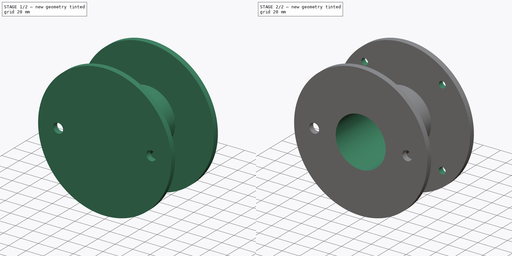
[diagram: build sequence overview — one tinted view per stage of 2, left to right]
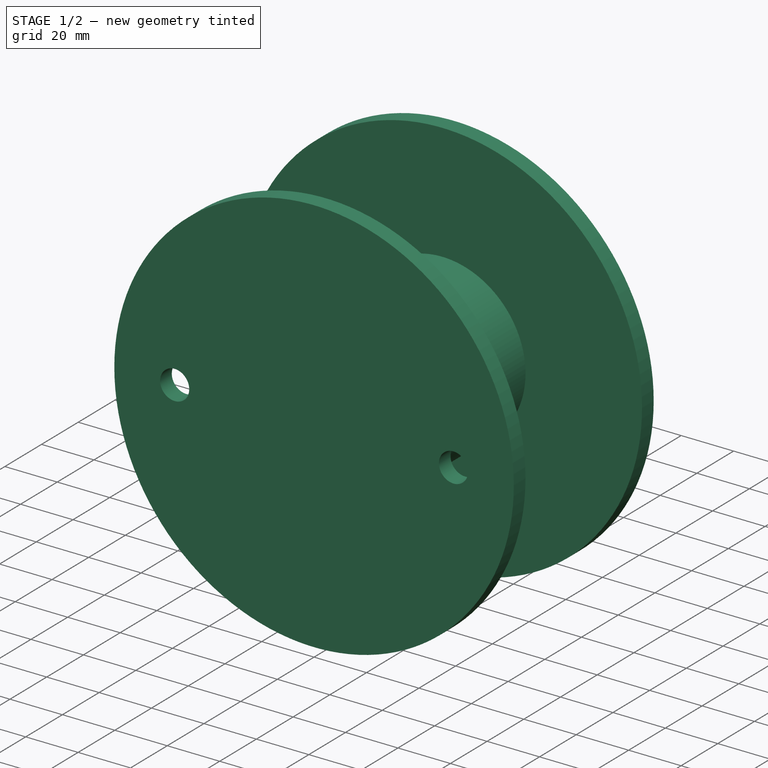
[diagram: stage 1 of 2 — iso view after this stage's code; geometry added in this stage tinted green]
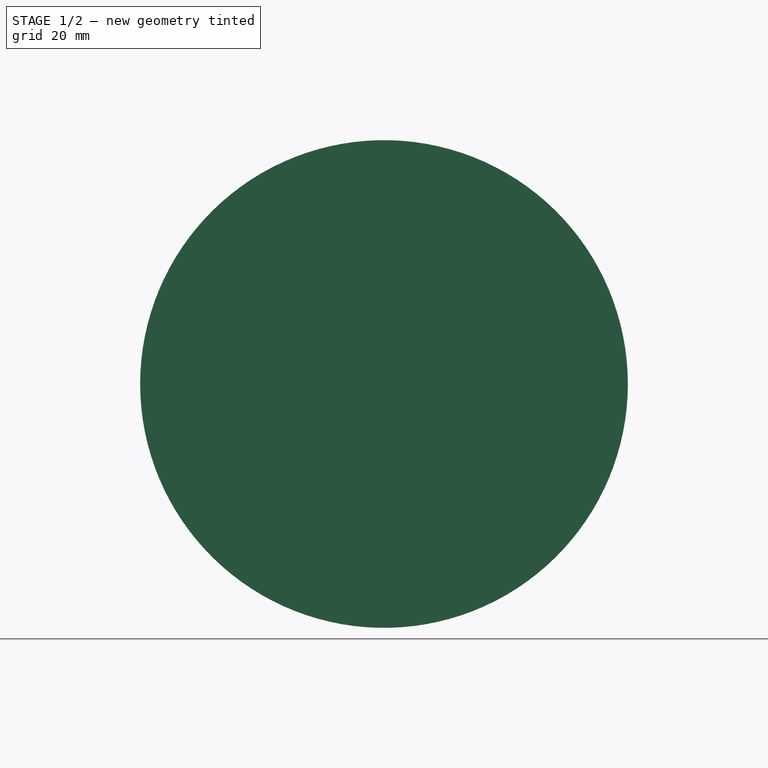
[diagram: stage 1 of 2 — front view after this stage's code; geometry added in this stage tinted green]
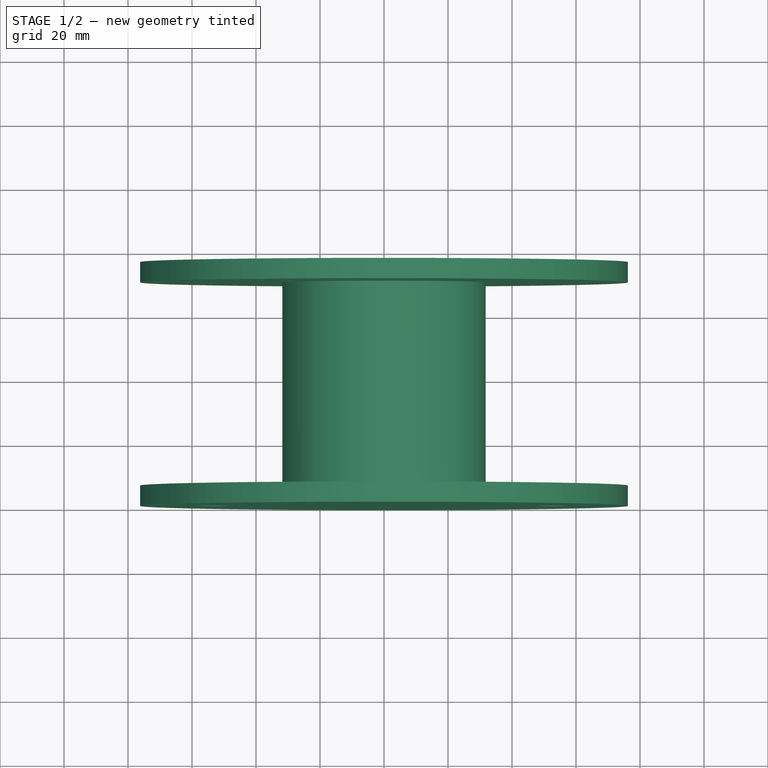
[diagram: stage 1 of 2 — top view after this stage's code; geometry added in this stage tinted green]
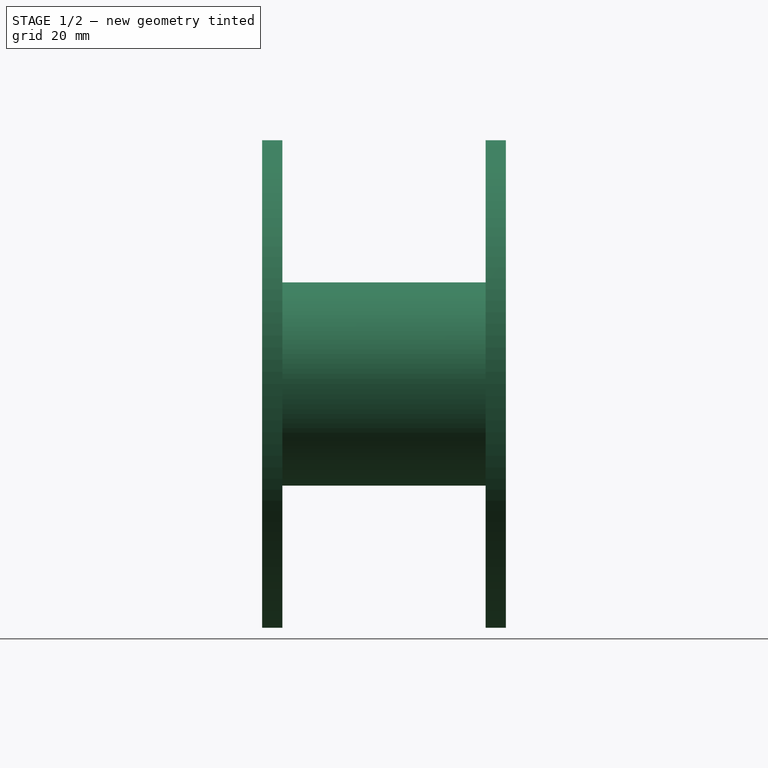
[diagram: stage 1 of 2 — right view after this stage's code; geometry added in this stage tinted green]
FCSTD DOCUMENT  (FreeCAD 0.16R6712 (Git))
Label: G22_Hydraulic_Pump_coupler_sleeve
License: All rights reserved
LicenseURL: http://en.wikipedia.org/wiki/All_rights_reserved
objects: Sketcher::SketchObject×4, PartDesign::Pocket×3, PartDesign::Revolution×1
note: 12 computed .brp shape members not serialized (recipe doc carries the construction recipe); baked Part::Feature solids carry a one-line shape summary decoded from their .brp

FEATURE [Sketcher::SketchObject] Sketch
  sketch-geometry (9):
    g0: LineSegment StartX=0 StartY=76.2 StartZ=0 EndX=-76.2 EndY=76.2 EndZ=0
    g1: LineSegment StartX=-76.2 StartY=76.2 StartZ=0 EndX=-76.2 EndY=69.85 EndZ=0
    g2: LineSegment StartX=-76.2 StartY=69.85 StartZ=0 EndX=-31.75 EndY=69.85 EndZ=0
    g3: LineSegment StartX=-31.75 StartY=69.85 StartZ=0 EndX=-31.75 EndY=6.35 EndZ=0
    g4: LineSegment StartX=-31.75 StartY=6.35 StartZ=0 EndX=-76.2 EndY=6.35 EndZ=0
    g5: LineSegment StartX=-76.2 StartY=6.35 StartZ=0 EndX=-76.2 EndY=0 EndZ=0
    g6: LineSegment StartX=-76.2 StartY=0 StartZ=0 EndX=0 EndY=0 EndZ=0
    g7: LineSegment StartX=0 StartY=0 StartZ=0 EndX=0 EndY=76.2 EndZ=0
    g8: LineSegment [constr] StartX=-31.75 StartY=69.85 StartZ=0 EndX=0 EndY=69.85 EndZ=0
  constraints (26):
    c: PointOnObject(g0,g-2)
    c: Horizontal(g0)
    c: Coincident(g0,g1)
    c: Vertical(g1)
    c: Coincident(g1,g2)
    c: Coincident(g2,g3)
    c: Vertical(g3)
    c: Coincident(g3,g4)
    c: Coincident(g4,g5)
    c: PointOnObject(g5,g-1)
    c: Coincident(g5,g6)
    c: Coincident(g6,g-1)
    c: Coincident(g6,g7)
    c: Coincident(g7,g0)
    c: DistanceY(g7,g7) = 76.2
    c: DistanceY(g1,g1) = 6.35
    c: DistanceX(g0,g0) = 76.2
    c: Perpendicular(g5,g6)
    c: Horizontal(g2)
    c: Horizontal(g4)
    c: Equal(g5,g1)
    c: Equal(g6,g0)
    c: Coincident(g8,g2)
    c: PointOnObject(g8,g7)
    c: Horizontal(g8)
    c: DistanceX(g8,g8) = 31.75
FEATURE [PartDesign::Revolution] Revolution
  Angle = 360
  Axis = (0,1,0)
  Base = (0,0,0)
  ReferenceAxis = -> Sketch [V_Axis]
  Sketch = -> Sketch
FEATURE [Sketcher::SketchObject] Sketch001
  Placement = pos=(0,0,0) rot=(1,0,0;1.5708rad)
  Support = -> Revolution [Face7]
  sketch-geometry (2):
    g0: Circle CenterX=-53.1749 CenterY=0 CenterZ=0 NormalX=0 NormalY=0 NormalZ=1 Radius=5.5499
    g1: Circle CenterX=53.1749 CenterY=0 CenterZ=0 NormalX=0 NormalY=0 NormalZ=1 Radius=5.5499
  constraints (6):
    c: PointOnObject(g0,g-1)
    c: PointOnObject(g1,g-1)
    c: Radius(g0) = 5.5499
    c: Equal(g0,g1)
    c: Symmetric(g0,g1,g-1)
    c: DistanceX(g0,g1) = 106.35
FEATURE [PartDesign::Pocket] Pocket
  Length = 6.35
  Sketch = -> Sketch001
  Type = 0
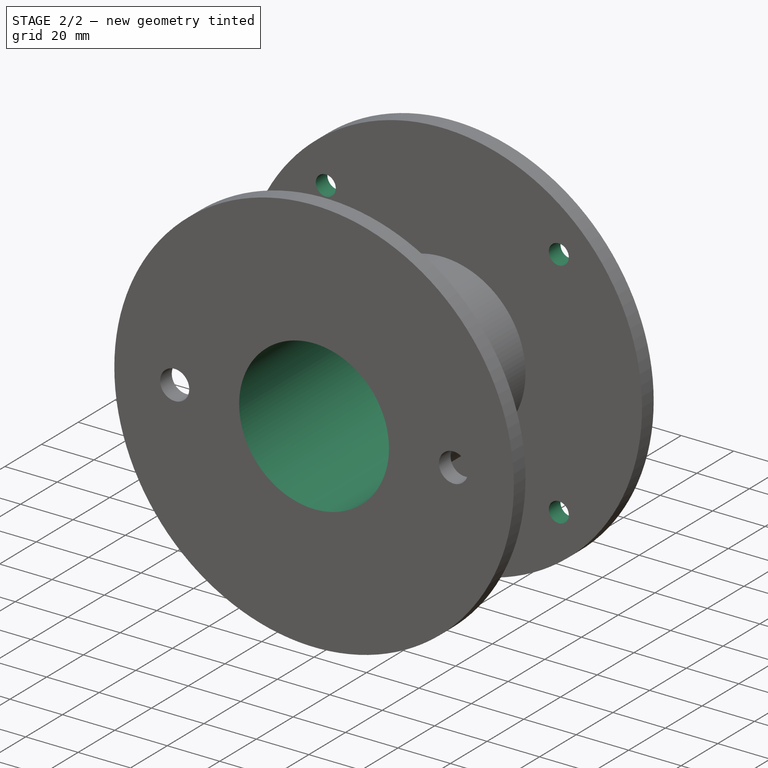
[diagram: stage 2 of 2 — iso view after this stage's code; geometry added in this stage tinted green]
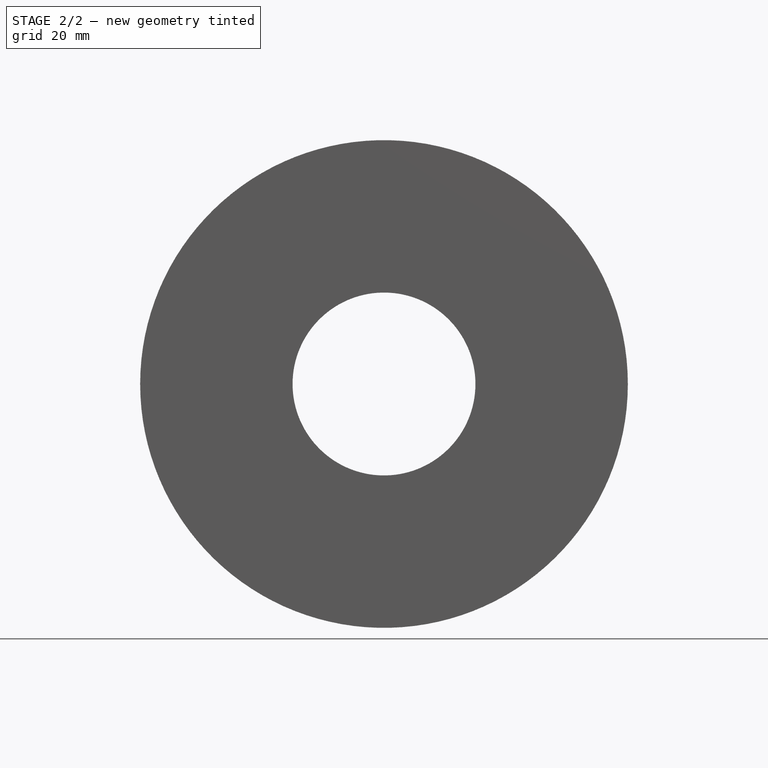
[diagram: stage 2 of 2 — front view after this stage's code; geometry added in this stage tinted green]
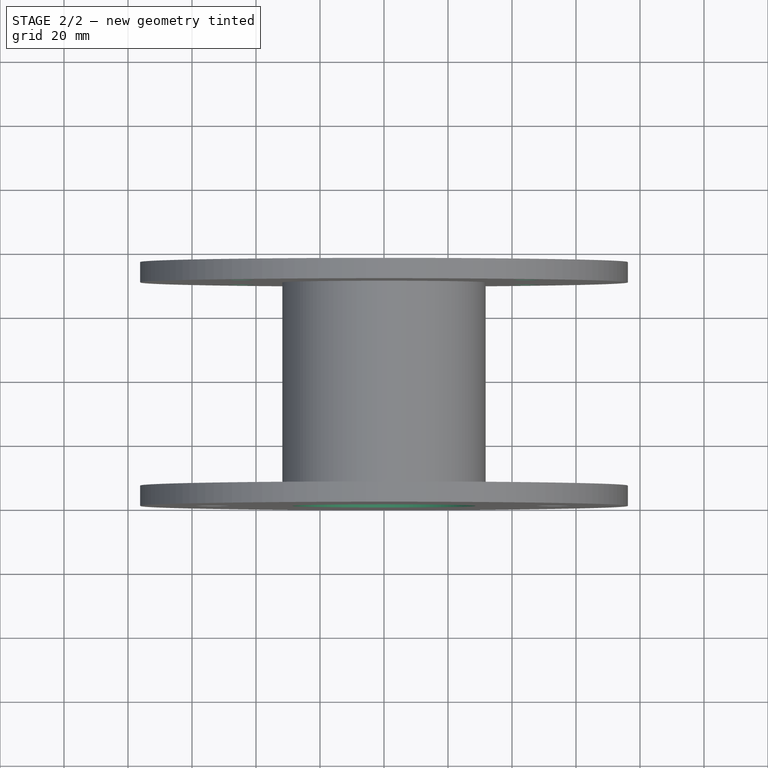
[diagram: stage 2 of 2 — top view after this stage's code; geometry added in this stage tinted green]
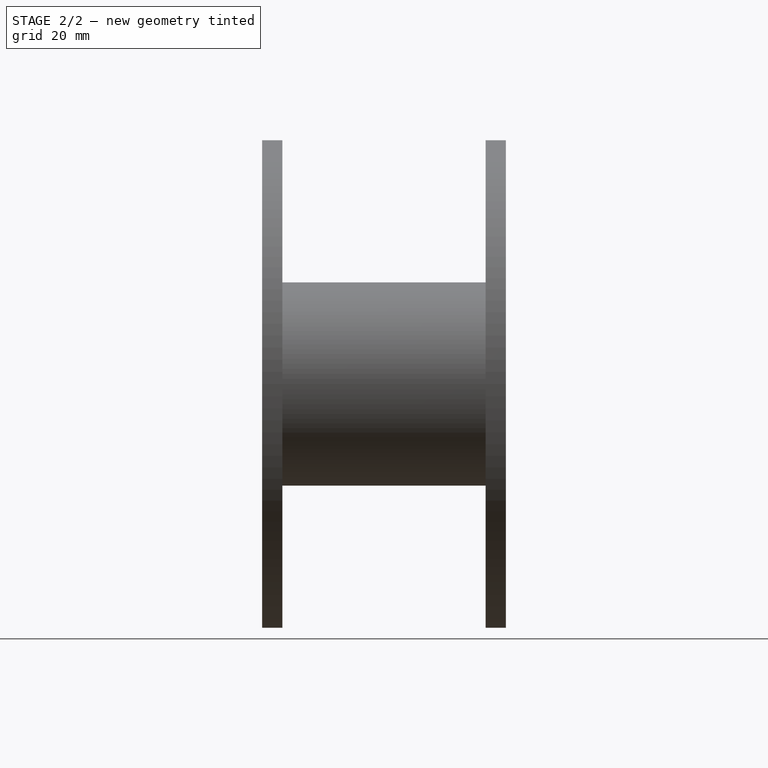
[diagram: stage 2 of 2 — right view after this stage's code; geometry added in this stage tinted green]
FEATURE [Sketcher::SketchObject] Sketch002
  Placement = pos=(0,76.2,0) rot=(0,0.707107,0.707107;3.14159rad)
  Support = -> Pocket [Face1]
  sketch-geometry (1):
    g0: Circle CenterX=0 CenterY=0 CenterZ=0 NormalX=0 NormalY=0 NormalZ=1 Radius=28.575
  constraints (2):
    c: Coincident(g0,g-1)
    c: Radius(g0) = 28.575
FEATURE [PartDesign::Pocket] Pocket001
  Length = 152.4
  Sketch = -> Sketch002
  Type = 0
FEATURE [Sketcher::SketchObject] Sketch003
  Placement = pos=(0,76.2,0) rot=(0,0.707107,0.707107;3.14159rad)
  Support = -> Pocket001 [Face1]
  sketch-geometry (8):
    g0: Circle CenterX=-44.45 CenterY=44.45 CenterZ=0 NormalX=0 NormalY=0 NormalZ=1 Radius=3.81
    g1: LineSegment [constr] StartX=-44.45 StartY=44.45 StartZ=0 EndX=44.45 EndY=44.45 EndZ=0
    g2: LineSegment [constr] StartX=44.45 StartY=44.45 StartZ=0 EndX=44.45 EndY=-44.45 EndZ=0
    g3: LineSegment [constr] StartX=44.45 StartY=-44.45 StartZ=0 EndX=-44.45 EndY=-44.45 EndZ=0
    g4: LineSegment [constr] StartX=-44.45 StartY=-44.45 StartZ=0 EndX=-44.45 EndY=44.45 EndZ=0
    g5: Circle CenterX=44.45 CenterY=-44.45 CenterZ=0 NormalX=0 NormalY=0 NormalZ=1 Radius=3.81
    g6: Circle CenterX=44.45 CenterY=44.45 CenterZ=0 NormalX=0 NormalY=0 NormalZ=1 Radius=3.81
    g7: Circle CenterX=-44.45 CenterY=-44.45 CenterZ=0 NormalX=0 NormalY=0 NormalZ=1 Radius=3.81
  constraints (21):
    c: Radius(g0) = 3.81
    c: Coincident(g1,g2)
    c: Coincident(g2,g3)
    c: Coincident(g3,g4)
    c: Coincident(g4,g1)
    c: Horizontal(g1)
    c: Horizontal(g3)
    c: Vertical(g2)
    c: Vertical(g4)
    c: Equal(g1,g4)
    c: Equal(g4,g3)
    c: Equal(g3,g2)
    c: DistanceX(g1,g1) = 88.9
    c: Symmetric(g1,g3,g-1)
    c: Coincident(g0,g1)
    c: Coincident(g5,g2)
    c: Coincident(g6,g1)
    c: Coincident(g7,g3)
    c: Equal(g7,g5)
    c: Equal(g5,g6)
    c: Equal(g6,g0)
FEATURE [PartDesign::Pocket] Pocket002
  Length = 6.35
  Sketch = -> Sketch003
  Type = 0
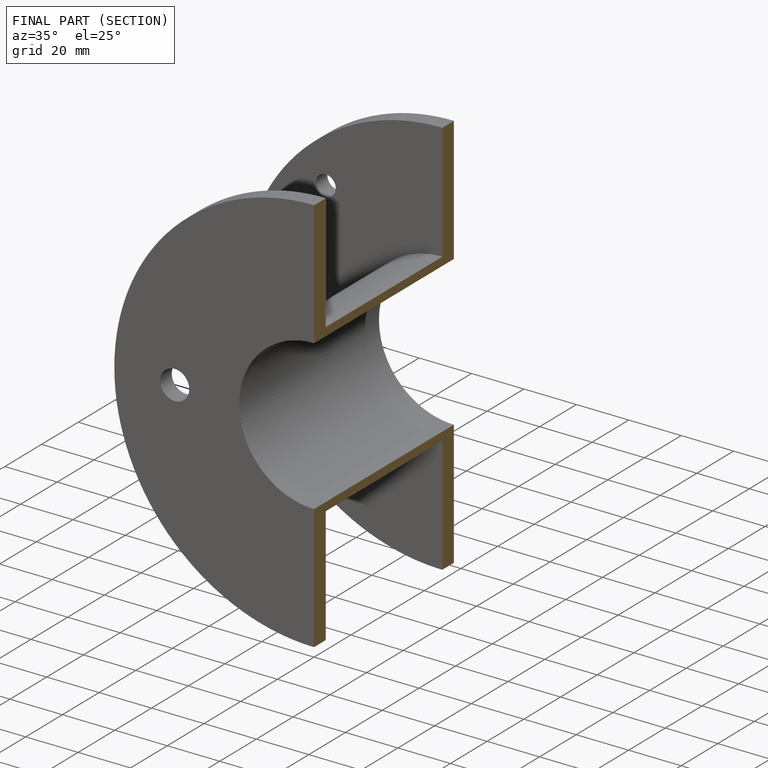
[diagram: finished part — half-section view (interior)]
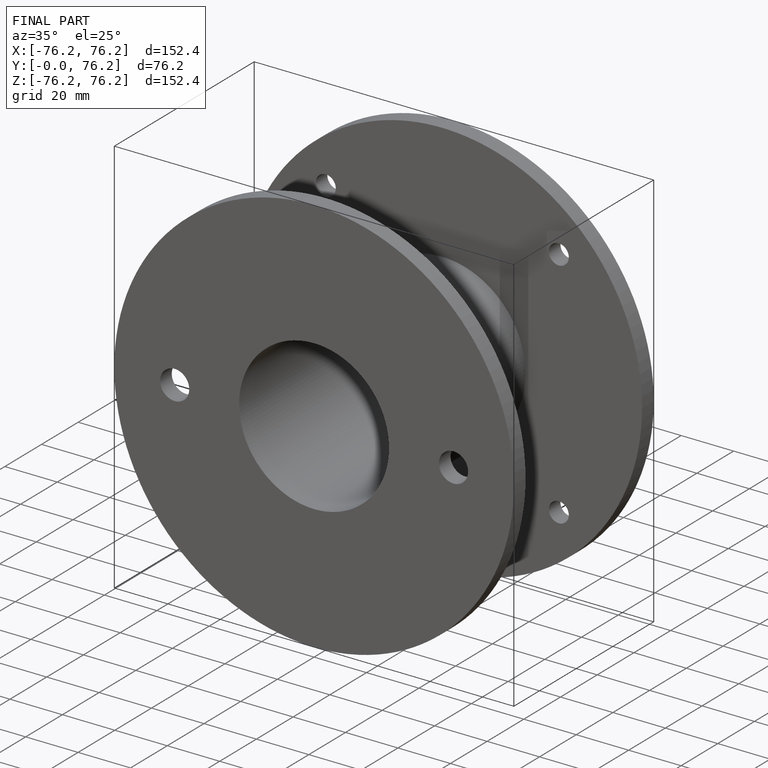
[diagram: finished part — iso view with bounding-box wireframe]
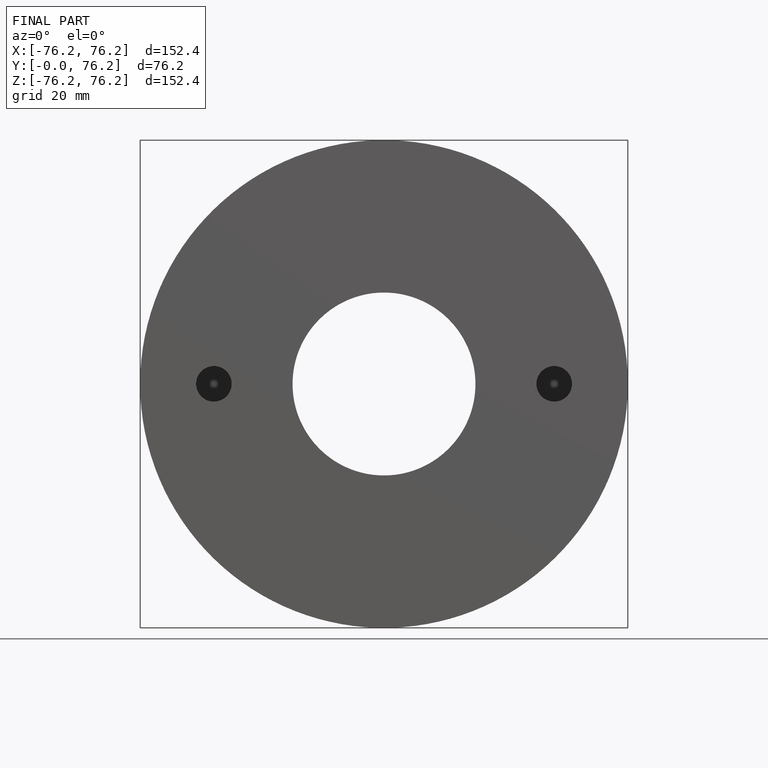
[diagram: finished part — front view with bounding-box wireframe]
